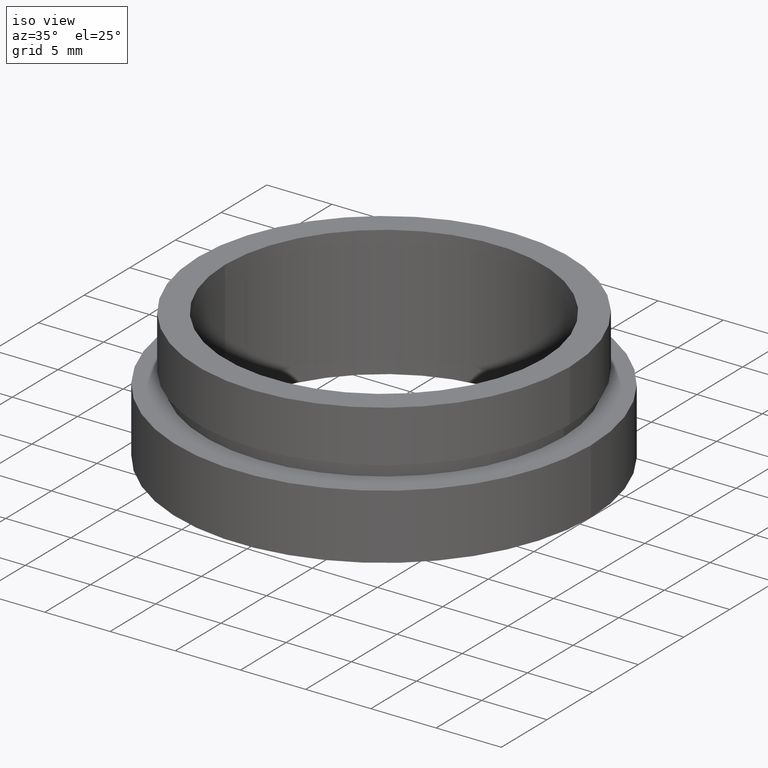
[diagram: clean part render]
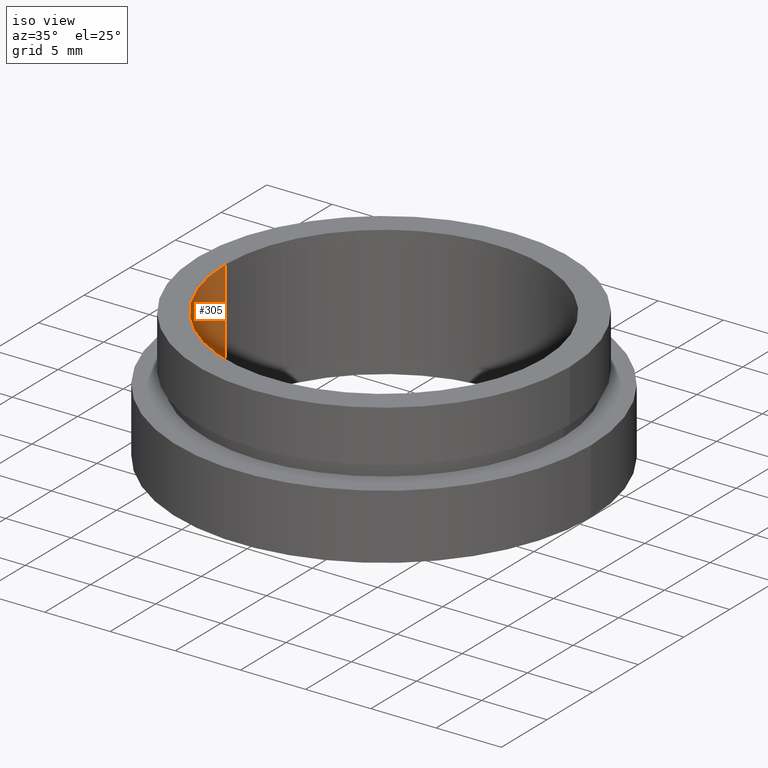
[diagram: same view with one face highlighted and labeled with its STEP entity id]
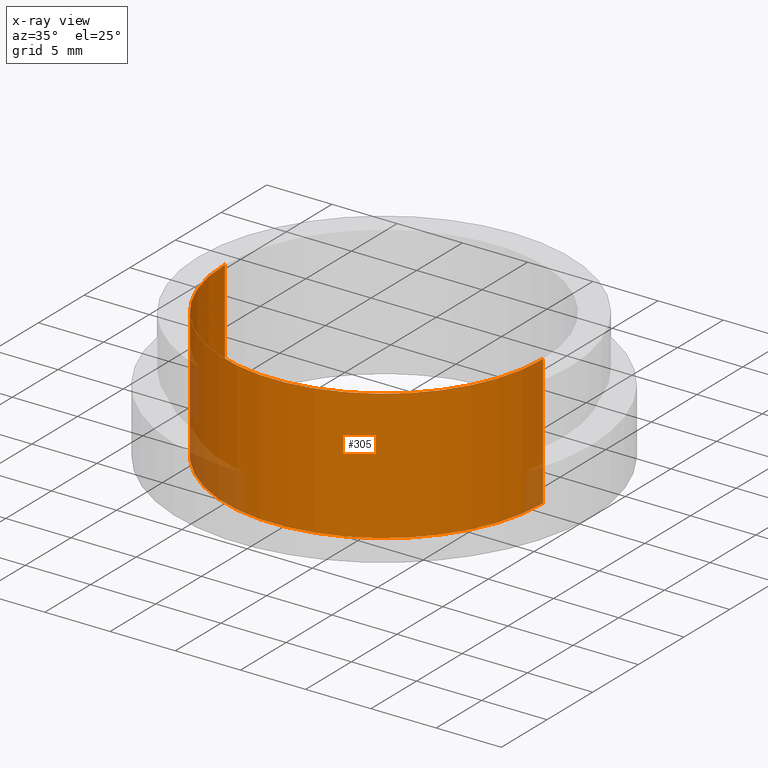
[diagram: x-ray of the same camera — body ghosted, the highlighted face saturated]
A machine part, iso view. The second image highlights one B-rep face of the part: STEP entity #305.
The next image is the same camera in x-ray: the body ghosted, the highlighted face saturated — about 7% of this face is hidden behind the body in this view.
In plain terms, the highlighted cylindrical surface (partial cylindrical patch) has radius 12.2 mm, axis along (-0, -0, -1).
Its self-contained STEP definition (entity closure, byte-faithful):
#10 = CYLINDRICAL_SURFACE ( 'NONE', #194, 12.20000000000000100 ) ;
#11 = CARTESIAN_POINT ( 'NONE',  ( 12.20000000000000100, 1.494069094959771100E-015, -19.14057971014493000 ) ) ;
#18 = CARTESIAN_POINT ( 'NONE',  ( 0.0000000000000000000, 0.0000000000000000000, 0.0000000000000000000 ) ) ;
#26 = AXIS2_PLACEMENT_3D ( 'NONE', #91, #193, #238 ) ;
#69 = CIRCLE ( 'NONE', #232, 12.20000000000000100 ) ;
#71 = CARTESIAN_POINT ( 'NONE',  ( -12.20000000000000100, 0.0000000000000000000, -19.14057971014493000 ) ) ;
#80 = VERTEX_POINT ( 'NONE', #141 ) ;
#91 = CARTESIAN_POINT ( 'NONE',  ( 0.0000000000000000000, 0.0000000000000000000, -10.00000000000000000 ) ) ;
#93 = CARTESIAN_POINT ( 'NONE',  ( 0.0000000000000000000, 0.0000000000000000000, -19.14057971014493000 ) ) ;
#114 = VERTEX_POINT ( 'NONE', #145 ) ;
#116 = DIRECTION ( 'NONE',  ( -0.0000000000000000000, -0.0000000000000000000, -1.000000000000000000 ) ) ;
#120 = CARTESIAN_POINT ( 'NONE',  ( 12.20000000000000100, 1.494069094959771100E-015, 0.0000000000000000000 ) ) ;
#122 = ORIENTED_EDGE ( 'NONE', *, *, #294, .T. ) ;
#123 = ORIENTED_EDGE ( 'NONE', *, *, #336, .F. ) ;
#129 = CARTESIAN_POINT ( 'NONE',  ( -12.20000000000000100, 0.0000000000000000000, 0.0000000000000000000 ) ) ;
#132 = VERTEX_POINT ( 'NONE', #129 ) ;
#133 = VECTOR ( 'NONE', #178, 1000.000000000000000 ) ;
#141 = CARTESIAN_POINT ( 'NONE',  ( 12.20000000000000100, 1.494069094959771100E-015, -10.00000000000000000 ) ) ;
#143 = ORIENTED_EDGE ( 'NONE', *, *, #289, .T. ) ;
#145 = CARTESIAN_POINT ( 'NONE',  ( -12.20000000000000100, 0.0000000000000000000, -10.00000000000000000 ) ) ;
#148 = ORIENTED_EDGE ( 'NONE', *, *, #207, .F. ) ;
#153 = EDGE_LOOP ( 'NONE', ( #123, #122, #143, #148 ) ) ;
#161 = DIRECTION ( 'NONE',  ( -1.000000000000000000, 0.0000000000000000000, 0.0000000000000000000 ) ) ;
#175 = FACE_OUTER_BOUND ( 'NONE', #153, .T. ) ;
#178 = DIRECTION ( 'NONE',  ( -0.0000000000000000000, -0.0000000000000000000, -1.000000000000000000 ) ) ;
#193 = DIRECTION ( 'NONE',  ( -0.0000000000000000000, -0.0000000000000000000, -1.000000000000000000 ) ) ;
#194 = AXIS2_PLACEMENT_3D ( 'NONE', #93, #270, #161 ) ;
#207 = EDGE_CURVE ( 'NONE', #132, #114, #285, .T. ) ;
#232 = AXIS2_PLACEMENT_3D ( 'NONE', #18, #116, #368 ) ;
#238 = DIRECTION ( 'NONE',  ( -1.000000000000000000, 0.0000000000000000000, 0.0000000000000000000 ) ) ;
#241 = VERTEX_POINT ( 'NONE', #120 ) ;
#256 = CIRCLE ( 'NONE', #26, 12.20000000000000100 ) ;
#270 = DIRECTION ( 'NONE',  ( -0.0000000000000000000, -0.0000000000000000000, -1.000000000000000000 ) ) ;
#285 = LINE ( 'NONE', #71, #358 ) ;
#289 = EDGE_CURVE ( 'NONE', #80, #114, #256, .T. ) ;
#294 = EDGE_CURVE ( 'NONE', #241, #80, #348, .T. ) ;
#305 = ADVANCED_FACE ( 'NONE', ( #175 ), #10, .F. ) ;
#336 = EDGE_CURVE ( 'NONE', #241, #132, #69, .T. ) ;
#348 = LINE ( 'NONE', #11, #133 ) ;
#358 = VECTOR ( 'NONE', #417, 1000.000000000000000 ) ;
#368 = DIRECTION ( 'NONE',  ( -1.000000000000000000, 0.0000000000000000000, 0.0000000000000000000 ) ) ;
#417 = DIRECTION ( 'NONE',  ( -0.0000000000000000000, -0.0000000000000000000, -1.000000000000000000 ) ) ;